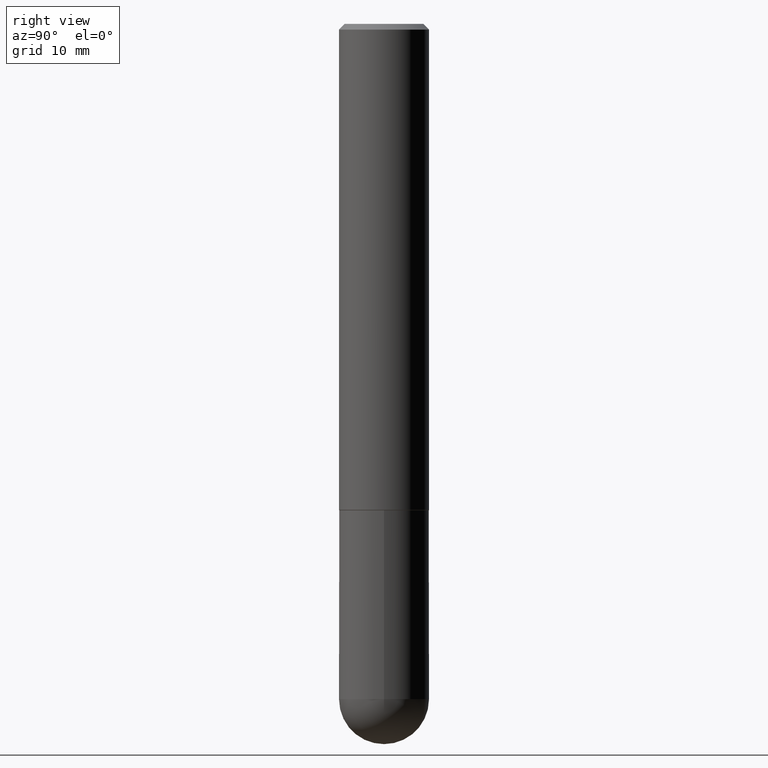
[diagram: clean part render]
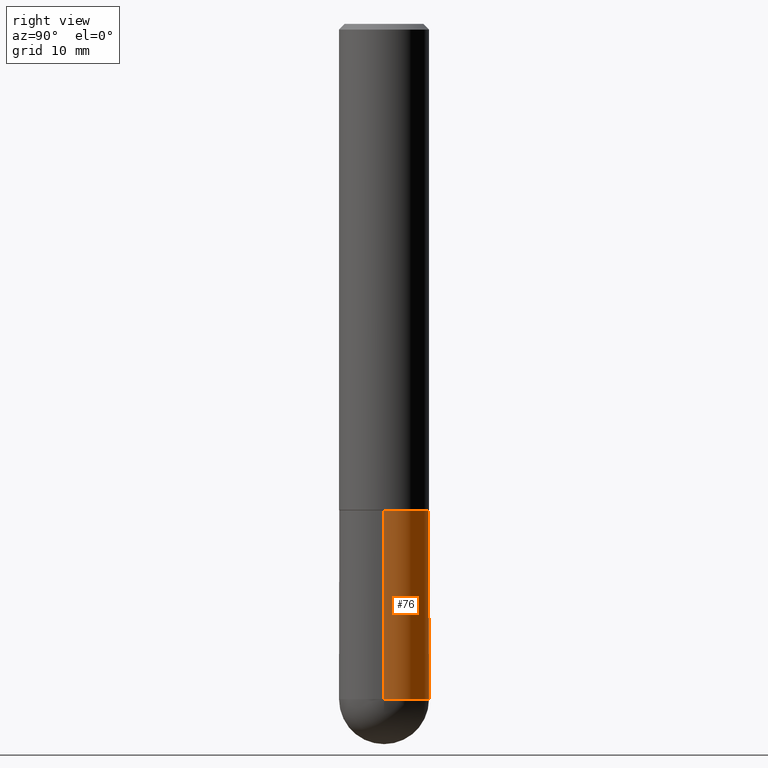
[diagram: same view with one face highlighted and labeled with its STEP entity id]
A machine part, right view. The second image highlights one B-rep face of the part: STEP entity #76.
In plain terms, the highlighted cylindrical surface (partial cylindrical patch) has radius 3.9688 mm, axis along (-0, 0, 1).
Its self-contained STEP definition (entity closure, byte-faithful):
#1 = DIRECTION ( 'NONE',  ( 1.000000000000000000, -6.982962677686262766E-15, 0.000000000000000000 ) ) ;
#5 = CIRCLE ( 'NONE', #222, 0.1562500000000000000 ) ;
#6 = ORIENTED_EDGE ( 'NONE', *, *, #275, .T. ) ;
#18 = DIRECTION ( 'NONE',  ( 1.000000000000000000, -6.982962677686266711E-15, 4.876176775795936353E-29 ) ) ;
#35 = CARTESIAN_POINT ( 'NONE',  ( 5.731567514496413899E-29, -8.183159387913622595E-15, -2.343750000000000000 ) ) ;
#45 = CARTESIAN_POINT ( 'NONE',  ( 0.1562500000000000000, -6.984708418355709513E-15, -1.688000000000000167 ) ) ;
#47 = EDGE_LOOP ( 'NONE', ( #361, #6, #92, #127, #84 ) ) ;
#60 = VERTEX_POINT ( 'NONE', #45 ) ;
#64 = DIRECTION ( 'NONE',  ( -2.445468806185136877E-29, 3.491481338843145188E-15, 1.000000000000000000 ) ) ;
#76 = ADVANCED_FACE ( 'NONE', ( #116 ), #326, .T. ) ;
#84 = ORIENTED_EDGE ( 'NONE', *, *, #135, .T. ) ;
#92 = ORIENTED_EDGE ( 'NONE', *, *, #277, .F. ) ;
#96 = CARTESIAN_POINT ( 'NONE',  ( 0.1562500000000000000, -8.129477862328905246E-15, -2.343750000000000000 ) ) ;
#107 = VERTEX_POINT ( 'NONE', #243 ) ;
#108 = DIRECTION ( 'NONE',  ( 1.000000000000000000, -6.982962677686269077E-15, 0.000000000000000000 ) ) ;
#113 = CARTESIAN_POINT ( 'NONE',  ( 5.731567514496413899E-29, -8.183159387913622595E-15, -2.343750000000000000 ) ) ;
#114 = CIRCLE ( 'NONE', #138, 0.1562500000000000000 ) ;
#116 = FACE_OUTER_BOUND ( 'NONE', #47, .T. ) ;
#120 = AXIS2_PLACEMENT_3D ( 'NONE', #175, #299, #18 ) ;
#127 = ORIENTED_EDGE ( 'NONE', *, *, #257, .F. ) ;
#129 = LINE ( 'NONE', #345, #395 ) ;
#134 = CARTESIAN_POINT ( 'NONE',  ( 0.1562500000000000000, -1.091087918388479174E-15, 7.619026212181150377E-30 ) ) ;
#135 = EDGE_CURVE ( 'NONE', #336, #316, #114, .T. ) ;
#138 = AXIS2_PLACEMENT_3D ( 'NONE', #113, #259, #351 ) ;
#149 = CARTESIAN_POINT ( 'NONE',  ( -0.1562500000000000000, -5.928166919315269532E-15, -1.688000000000000167 ) ) ;
#156 = DIRECTION ( 'NONE',  ( -2.445468806185136597E-29, 3.491481338843145583E-15, 1.000000000000000000 ) ) ;
#168 = VECTOR ( 'NONE', #195, 39.37007874015748143 ) ;
#175 = CARTESIAN_POINT ( 'NONE',  ( 0.000000000000000000, 0.000000000000000000, 0.000000000000000000 ) ) ;
#177 = VERTEX_POINT ( 'NONE', #149 ) ;
#185 = AXIS2_PLACEMENT_3D ( 'NONE', #35, #156, #1 ) ;
#195 = DIRECTION ( 'NONE',  ( -2.445468806185136877E-29, 3.491481338843145188E-15, 1.000000000000000000 ) ) ;
#222 = AXIS2_PLACEMENT_3D ( 'NONE', #387, #389, #108 ) ;
#235 = EDGE_CURVE ( 'NONE', #316, #107, #365, .T. ) ;
#243 = CARTESIAN_POINT ( 'NONE',  ( -0.1562500000000000000, -5.928166919315270321E-15, -2.343750000000000000 ) ) ;
#257 = EDGE_CURVE ( 'NONE', #336, #60, #396, .T. ) ;
#259 = DIRECTION ( 'NONE',  ( -2.445468806185136597E-29, 3.491481338843145583E-15, 1.000000000000000000 ) ) ;
#275 = EDGE_CURVE ( 'NONE', #107, #177, #129, .T. ) ;
#277 = EDGE_CURVE ( 'NONE', #60, #177, #5, .T. ) ;
#287 = CARTESIAN_POINT ( 'NONE',  ( 1.091087918388535577E-15, 0.1562499999999916733, -2.343750000000000444 ) ) ;
#299 = DIRECTION ( 'NONE',  ( -2.445468806185136597E-29, 3.491481338843145583E-15, 1.000000000000000000 ) ) ;
#316 = VERTEX_POINT ( 'NONE', #287 ) ;
#326 = CYLINDRICAL_SURFACE ( 'NONE', #120, 0.1562500000000000000 ) ;
#336 = VERTEX_POINT ( 'NONE', #96 ) ;
#345 = CARTESIAN_POINT ( 'NONE',  ( -0.1562500000000000000, 1.110223024625156540E-15, -7.685836078523291160E-30 ) ) ;
#351 = DIRECTION ( 'NONE',  ( 1.000000000000000000, -6.982962677686262766E-15, 0.000000000000000000 ) ) ;
#361 = ORIENTED_EDGE ( 'NONE', *, *, #235, .T. ) ;
#365 = CIRCLE ( 'NONE', #185, 0.1562500000000000000 ) ;
#387 = CARTESIAN_POINT ( 'NONE',  ( 4.127951344840510809E-29, -5.893620499967230340E-15, -1.688000000000000167 ) ) ;
#389 = DIRECTION ( 'NONE',  ( -2.445468806185136597E-29, 3.491481338843145583E-15, 1.000000000000000000 ) ) ;
#395 = VECTOR ( 'NONE', #64, 39.37007874015748143 ) ;
#396 = LINE ( 'NONE', #134, #168 ) ;